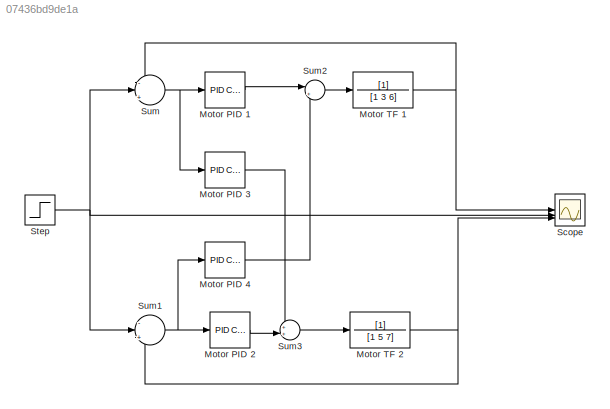
MODEL slx_07436bd9de1a
KIND model
CONFIG AbsTol = auto
CONFIG EnableMultiTasking = off
CONFIG FixedStep = auto
CONFIG MaxStep = auto
CONFIG MinStep = auto
CONFIG RelTol = 1e-3
CONFIG SampleTimeConstraint = Unconstrained
CONFIG SolverName = VariableStepAuto
CONFIG StartTime = 0.0
CONFIG StopTime = 1
BLOCK [Reference] Motor PID 1  REF=slpidlib/PID Controller
  LibrarySourceBlock = simulink/Continuous/PID Controller
  SourceBlock = slpidlib/PID Controller
  SourceType = PID 1dof
BLOCK [Reference] Motor PID 2  REF=slpidlib/PID Controller
  LibrarySourceBlock = simulink/Continuous/PID Controller
  SourceBlock = slpidlib/PID Controller
  SourceType = PID 1dof
BLOCK [Reference] Motor PID 3  REF=slpidlib/PID Controller
  LibrarySourceBlock = simulink/Continuous/PID Controller
  SourceBlock = slpidlib/PID Controller
  SourceType = PID 1dof
BLOCK [Reference] Motor PID 4  REF=slpidlib/PID Controller
  LibrarySourceBlock = simulink/Continuous/PID Controller
  SourceBlock = slpidlib/PID Controller
  SourceType = PID 1dof
BLOCK [TransferFcn] Motor TF 1
  Denominator = [1 3 6]
BLOCK [TransferFcn] Motor TF 2
  Denominator = [1 5 7]
BLOCK [Scope] Scope
  Floating = off
  NumInputPorts = 3
  ScopeSpecificationString = Simulink.scopes.TimeScopeBlockCfg('CurrentConfiguration', extmgr.ConfigurationSet(extmgr.Configuration('Core','General UI',true),extmgr.Configuration('Core','Source UI',true),extmgr.Configuration('Sources','WiredSimulink',true),extmgr.Configuration('Visuals','Time Domain',true,'SerializedDisplays',{struct('MinYLimReal','-0.13007','MaxYLimReal','1.17065','YLabelReal','','MinYLimMag','0.00000','MaxY...<+1379ch>
BLOCK [Step] Step
  SampleTime = 0.01
  Time = 0.1
BLOCK [Sum] Sum
  Inputs = -|+|-
BLOCK [Sum] Sum1
  Inputs = -|+|-
BLOCK [Sum] Sum2
  Inputs = |++
BLOCK [Sum] Sum3
  Inputs = ++|
LINE Motor PID 1:1 -> Sum2:1
LINE Motor PID 2:1 -> Sum3:2
LINE Motor PID 3:1 -> Sum3:1
LINE Motor PID 4:1 -> Sum2:2
NET Motor TF 1:1 -> Scope:1, Sum:1
NET Motor TF 2:1 -> Scope:3, Sum1:3
NET Step:1 -> Scope:2, Sum1:2, Sum:2
NET Sum1:1 -> Motor PID 2:1, Motor PID 4:1
LINE Sum2:1 -> Motor TF 1:1
LINE Sum3:1 -> Motor TF 2:1
NET Sum:1 -> Motor PID 1:1, Motor PID 3:1
note: NET lines group one-source signal fan-out (src -> all destinations, sorted); 1:1 wires keep LINE
